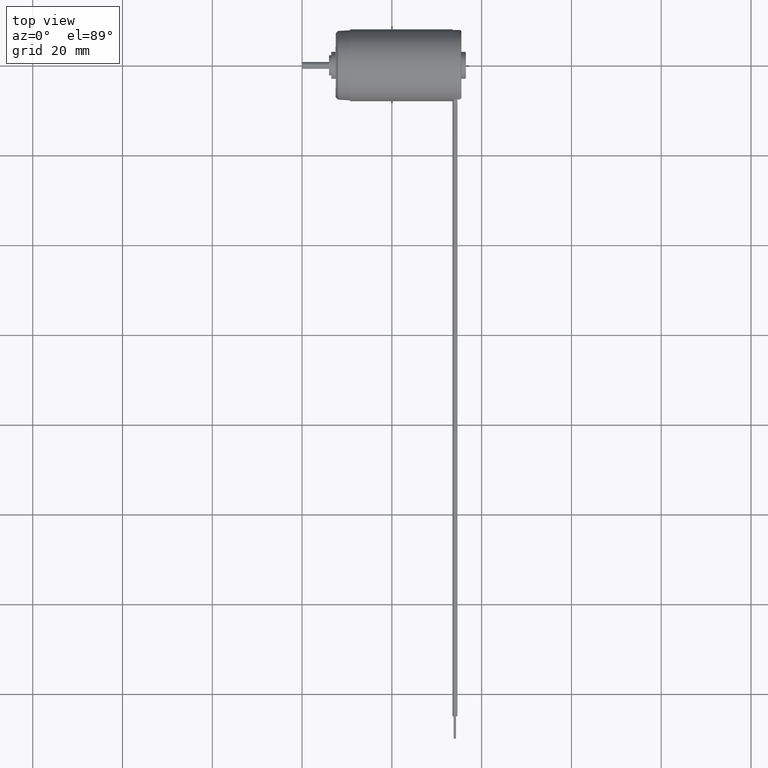
[diagram: clean part render]
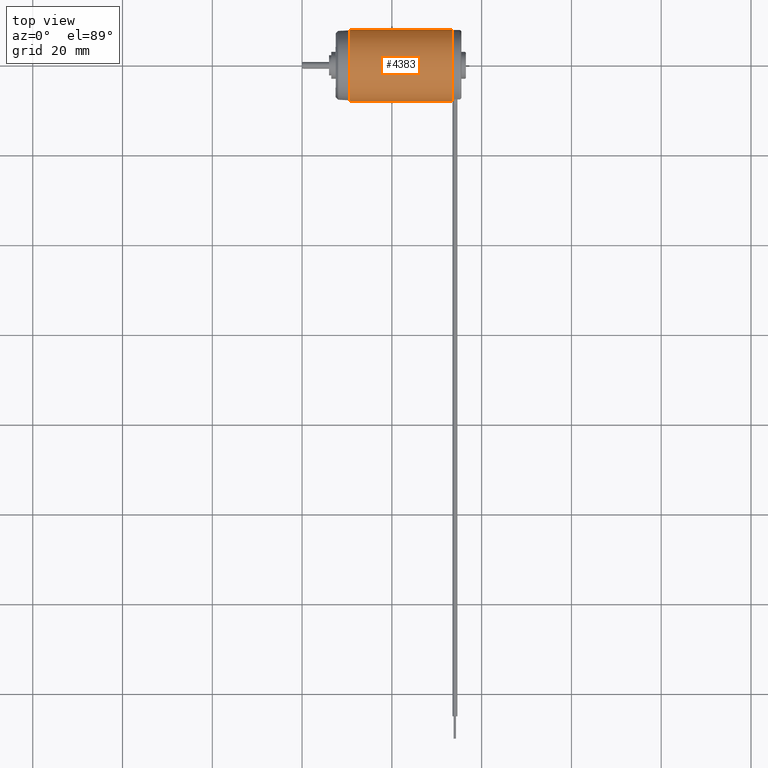
[diagram: same view with one face highlighted and labeled with its STEP entity id]
A machine part, top view. The second image highlights one B-rep face of the part: STEP entity #4383.
In plain terms, the highlighted cylindrical surface (edge-blend (fillet) strip) has radius 8 mm, axis along (-1, 0, 0).
Its self-contained STEP definition (entity closure, byte-faithful):
#816=DIRECTION('',(-1.E0,0.E0,0.E0));
#817=VECTOR('',#816,2.28E1);
#818=CARTESIAN_POINT('',(3.35E1,8.E0,0.E0));
#819=LINE('',#818,#817);
#820=CARTESIAN_POINT('',(3.35E1,0.E0,0.E0));
#821=DIRECTION('',(1.E0,0.E0,0.E0));
#822=DIRECTION('',(0.E0,1.E0,0.E0));
#823=AXIS2_PLACEMENT_3D('',#820,#821,#822);
#825=DIRECTION('',(-1.E0,0.E0,0.E0));
#826=VECTOR('',#825,2.28E1);
#827=CARTESIAN_POINT('',(3.35E1,-8.E0,0.E0));
#828=LINE('',#827,#826);
#829=CARTESIAN_POINT('',(1.07E1,1.093573473963E-14,0.E0));
#830=DIRECTION('',(1.E0,0.E0,0.E0));
#831=DIRECTION('',(0.E0,1.E0,0.E0));
#832=AXIS2_PLACEMENT_3D('',#829,#830,#831);
#2585=CARTESIAN_POINT('',(3.35E1,8.E0,0.E0));
#2586=CARTESIAN_POINT('',(1.07E1,8.E0,0.E0));
#2587=VERTEX_POINT('',#2585);
#2588=VERTEX_POINT('',#2586);
#2601=CARTESIAN_POINT('',(3.35E1,-8.E0,0.E0));
#2602=CARTESIAN_POINT('',(1.07E1,-8.E0,0.E0));
#2603=VERTEX_POINT('',#2601);
#2604=VERTEX_POINT('',#2602);
#4371=CARTESIAN_POINT('',(3.8325E1,0.E0,0.E0));
#4372=DIRECTION('',(-1.E0,0.E0,0.E0));
#4373=DIRECTION('',(0.E0,1.E0,0.E0));
#4374=AXIS2_PLACEMENT_3D('',#4371,#4372,#4373);
#4375=CYLINDRICAL_SURFACE('',#4374,8.E0);
#4376=ORIENTED_EDGE('',*,*,#4361,.F.);
#4377=ORIENTED_EDGE('',*,*,#4334,.T.);
#4378=ORIENTED_EDGE('',*,*,#4365,.T.);
#4380=ORIENTED_EDGE('',*,*,#4379,.F.);
#4381=EDGE_LOOP('',(#4376,#4377,#4378,#4380));
#4382=FACE_OUTER_BOUND('',#4381,.F.);
#4383=ADVANCED_FACE('',(#4382),#4375,.T.);
#824=CIRCLE('',#823,8.E0);
#833=CIRCLE('',#832,8.E0);
#4334=EDGE_CURVE('',#2587,#2603,#824,.T.);
#4361=EDGE_CURVE('',#2587,#2588,#819,.T.);
#4365=EDGE_CURVE('',#2603,#2604,#828,.T.);
#4379=EDGE_CURVE('',#2588,#2604,#833,.T.);